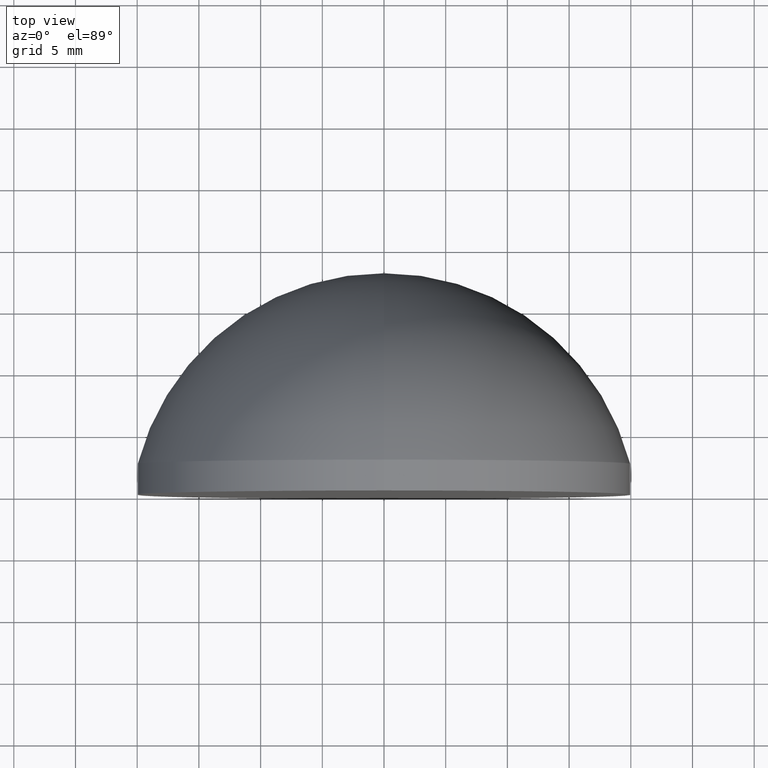
[diagram: clean part render]
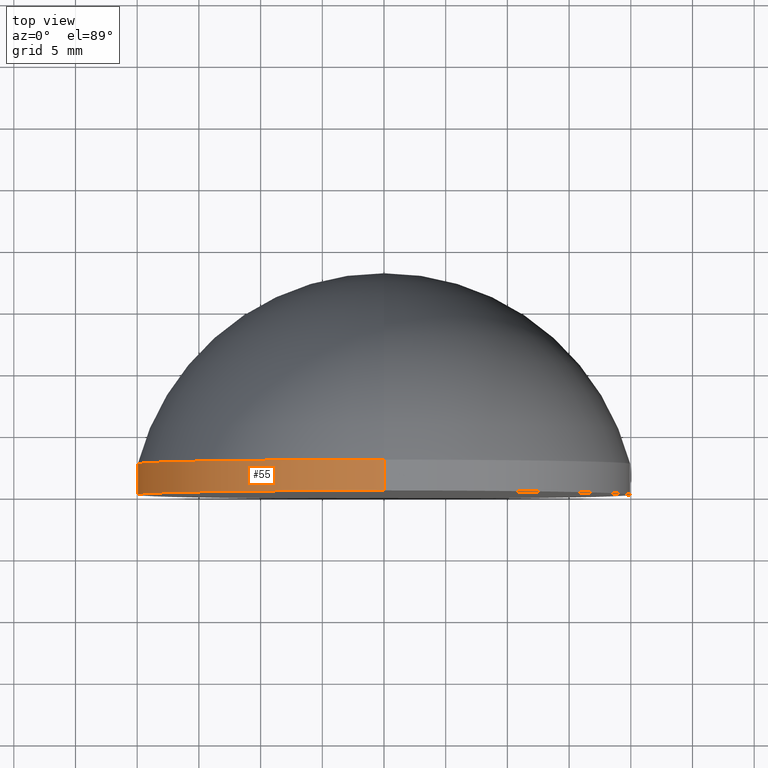
[diagram: same view with one face highlighted and labeled with its STEP entity id]
A machine part, top view. The second image highlights one B-rep face of the part: STEP entity #55.
In plain terms, the highlighted cylindrical surface (partial cylindrical patch) has radius 20 mm, axis along (-0, 1, -0).
Its self-contained STEP definition (entity closure, byte-faithful):
#3 = LINE ( 'NONE', #188, #143 ) ;
#4 = CIRCLE ( 'NONE', #167, 20.00000000000000000 ) ;
#5 = ORIENTED_EDGE ( 'NONE', *, *, #109, .F. ) ;
#10 = VERTEX_POINT ( 'NONE', #40 ) ;
#14 = CARTESIAN_POINT ( 'NONE',  ( 2.449293598294706513E-15, 2.499999999999996891, -20.00000000000000000 ) ) ;
#16 = CARTESIAN_POINT ( 'NONE',  ( 0.000000000000000000, 2.499999999999996891, 20.00000000000000000 ) ) ;
#24 = CARTESIAN_POINT ( 'NONE',  ( 0.000000000000000000, -3.469446951953614189E-15, 0.000000000000000000 ) ) ;
#27 = ORIENTED_EDGE ( 'NONE', *, *, #128, .T. ) ;
#29 = CYLINDRICAL_SURFACE ( 'NONE', #53, 20.00000000000000000 ) ;
#36 = CARTESIAN_POINT ( 'NONE',  ( 0.000000000000000000, -3.469446951953614189E-15, 20.00000000000000000 ) ) ;
#40 = CARTESIAN_POINT ( 'NONE',  ( 2.449293598294706513E-15, -3.469446951953614189E-15, -20.00000000000000000 ) ) ;
#45 = CIRCLE ( 'NONE', #156, 20.00000000000000000 ) ;
#46 = EDGE_CURVE ( 'NONE', #175, #145, #45, .T. ) ;
#51 = CARTESIAN_POINT ( 'NONE',  ( 0.000000000000000000, 2.499999999999996891, 0.000000000000000000 ) ) ;
#53 = AXIS2_PLACEMENT_3D ( 'NONE', #190, #86, #88 ) ;
#55 = ADVANCED_FACE ( 'NONE', ( #116 ), #29, .T. ) ;
#59 = VECTOR ( 'NONE', #118, 1000.000000000000000 ) ;
#60 = EDGE_CURVE ( 'NONE', #104, #145, #149, .T. ) ;
#64 = DIRECTION ( 'NONE',  ( 0.000000000000000000, 0.000000000000000000, 1.000000000000000000 ) ) ;
#65 = CARTESIAN_POINT ( 'NONE',  ( 0.000000000000000000, 17.94999999999999929, 20.00000000000000000 ) ) ;
#82 = DIRECTION ( 'NONE',  ( -0.000000000000000000, 1.000000000000000000, -0.000000000000000000 ) ) ;
#83 = ORIENTED_EDGE ( 'NONE', *, *, #60, .T. ) ;
#86 = DIRECTION ( 'NONE',  ( -0.000000000000000000, 1.000000000000000000, -0.000000000000000000 ) ) ;
#88 = DIRECTION ( 'NONE',  ( 0.000000000000000000, 0.000000000000000000, 1.000000000000000000 ) ) ;
#101 = EDGE_LOOP ( 'NONE', ( #5, #27, #83, #117 ) ) ;
#104 = VERTEX_POINT ( 'NONE', #36 ) ;
#109 = EDGE_CURVE ( 'NONE', #10, #175, #3, .T. ) ;
#116 = FACE_OUTER_BOUND ( 'NONE', #101, .T. ) ;
#117 = ORIENTED_EDGE ( 'NONE', *, *, #46, .F. ) ;
#118 = DIRECTION ( 'NONE',  ( -0.000000000000000000, 1.000000000000000000, -0.000000000000000000 ) ) ;
#128 = EDGE_CURVE ( 'NONE', #10, #104, #4, .T. ) ;
#143 = VECTOR ( 'NONE', #174, 1000.000000000000000 ) ;
#145 = VERTEX_POINT ( 'NONE', #16 ) ;
#149 = LINE ( 'NONE', #65, #59 ) ;
#156 = AXIS2_PLACEMENT_3D ( 'NONE', #51, #162, #64 ) ;
#162 = DIRECTION ( 'NONE',  ( -0.000000000000000000, 1.000000000000000000, -0.000000000000000000 ) ) ;
#167 = AXIS2_PLACEMENT_3D ( 'NONE', #24, #82, #195 ) ;
#174 = DIRECTION ( 'NONE',  ( -0.000000000000000000, 1.000000000000000000, -0.000000000000000000 ) ) ;
#175 = VERTEX_POINT ( 'NONE', #14 ) ;
#188 = CARTESIAN_POINT ( 'NONE',  ( 2.449293598294706513E-15, 17.94999999999999929, -20.00000000000000000 ) ) ;
#190 = CARTESIAN_POINT ( 'NONE',  ( 0.000000000000000000, 17.94999999999999929, 0.000000000000000000 ) ) ;
#195 = DIRECTION ( 'NONE',  ( 0.000000000000000000, 0.000000000000000000, 1.000000000000000000 ) ) ;